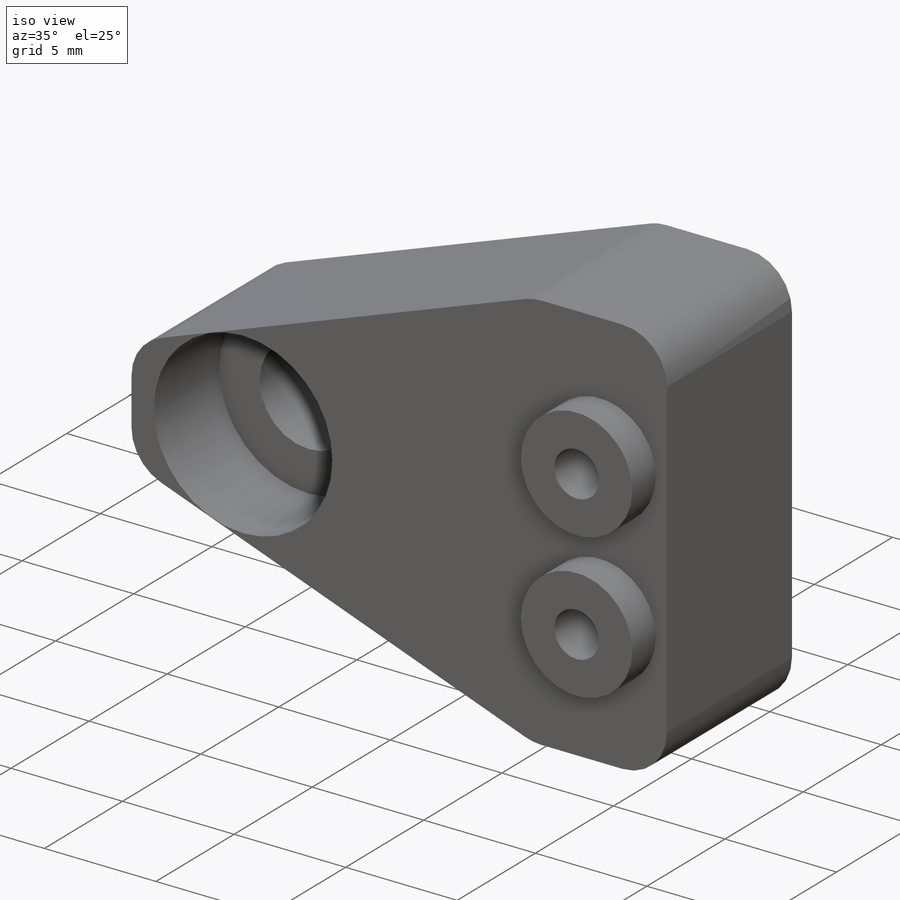
[diagram: iso view]
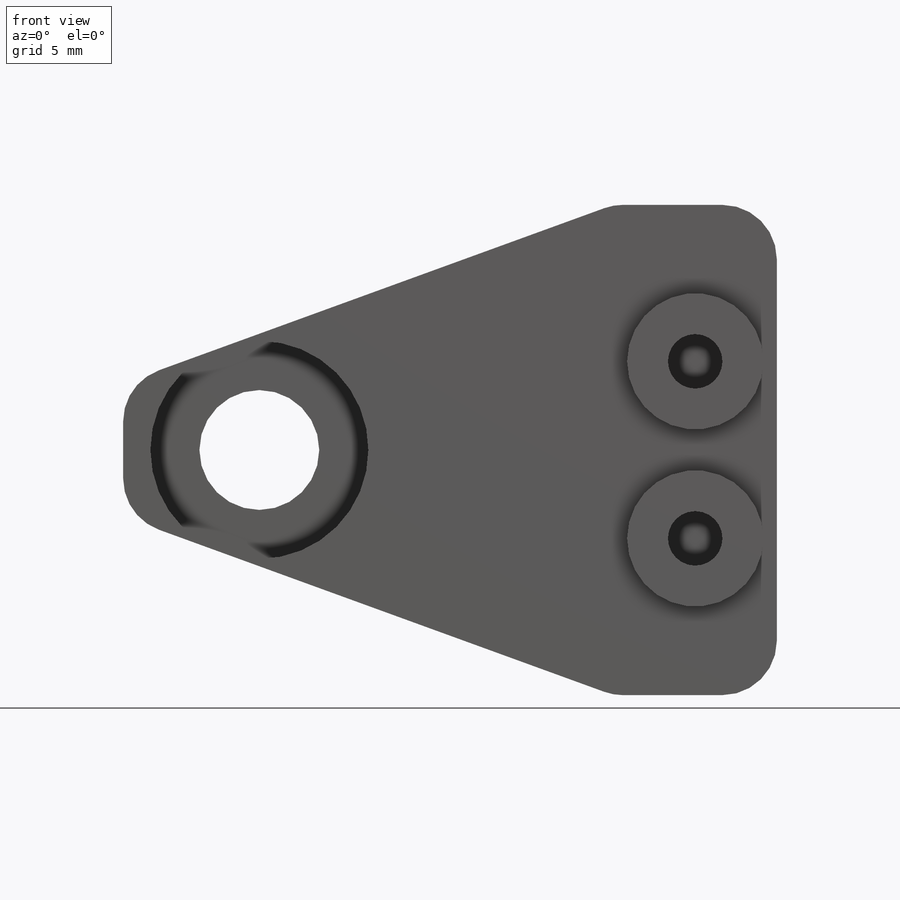
[diagram: front view]
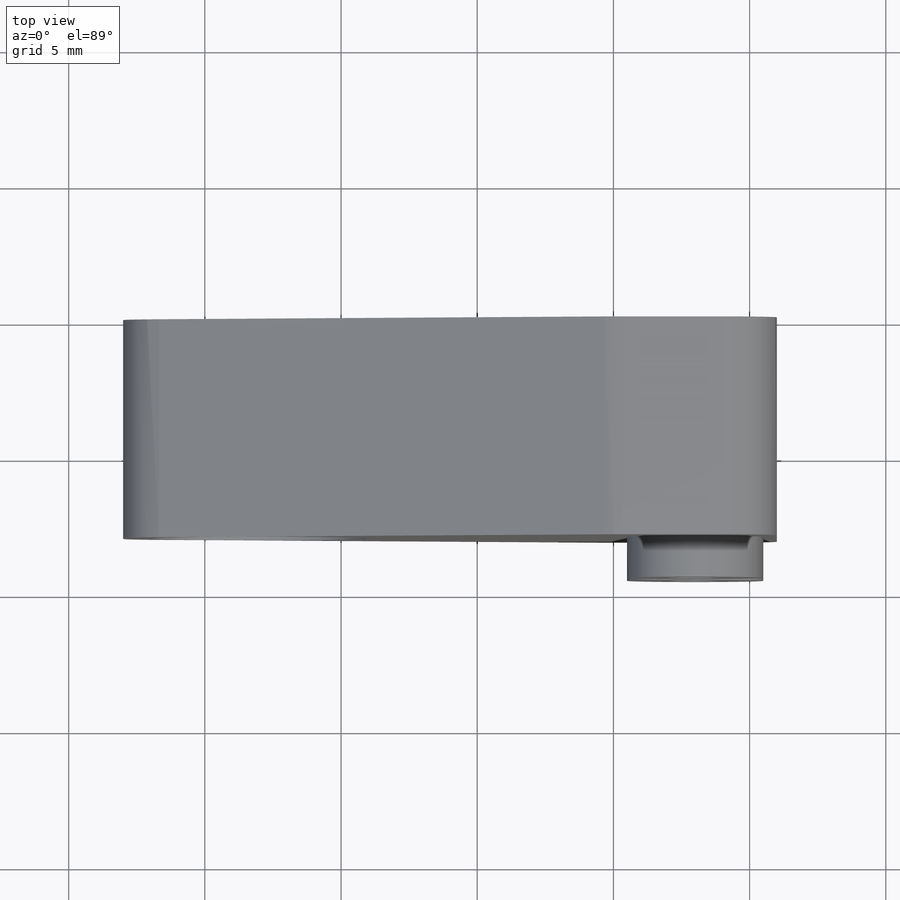
[diagram: top view]
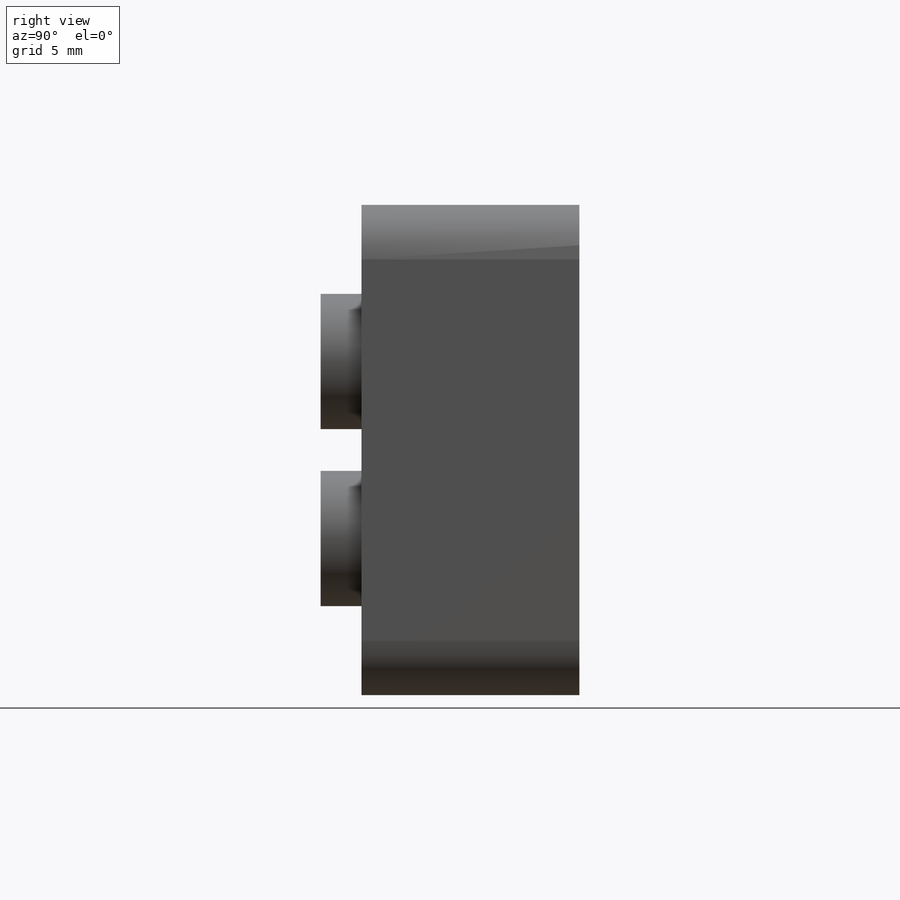
[diagram: right view]
SOLIDWORKS PART (.sldprt)
format: sldprt  version: not decoded by parser v0  size: 237,056 bytes
history: native  units: mm
features: sketch x7, cut_extrude x4, plane x3, extrude x3, material x1, chamfer x1, fillet x1 (+8 scaffold rows collapsed)
feature tree (28):
  scaffold x8  (default folders/planes/origin — collapsed)
  material  "Matériau <non spécifié>"
  plane  "Plan de face"
  plane  "Plan de dessus"
  plane  "Plan de droite"
  sketch  "Esquisse1"  dims[D1=18.0mm D2=24.0mm D3=9.0mm D4=8.0mm]
  extrude  "Boss.-Extru.1"  Depth=8mm
  sketch  "Esquisse2"  dims[D1=4.4mm D2=5.0mm D3=9.0mm]
  cut_extrude  "Enlèv. mat.-Extru.1"  [1 undecoded]
  sketch  "Esquisse3"  dims[D1=8.0mm]
  cut_extrude  "Enlèv. mat.-Extru.2"  Depth=4.2mm
  sketch  "Esquisse4"  dims[D2=2.0mm D3=2.0mm D1=6.5mm D4=3.0mm D5=3.0mm D6=3.25mm]
  cut_extrude  "Enlèv. mat.-Extru.3"  [1 undecoded]
  sketch  "Esquisse5"  dims[D1=5.2mm D2=5.2mm]
  cut_extrude  "Enlèv. mat.-Extru.6"  Depth=4.2mm
  sketch  "Esquisse6"
  extrude  "Boss.-Extru.2"  Depth=1mm
  chamfer  "Chanfrein1"  Distance=18mm Angle=20deg
  fillet  "Congé1"  Radius=2mm
  sketch  "Esquisse7"  dims[D1=5.0mm D2=5.0mm]
  extrude  "Boss.-Extru.3"  Depth=1.5mm
decode coverage: 13 of 16 modeling features carry decoded parameters
note: 2 parameter values undecoded
note: suppression state not decoded; provenance and decode notes live in map.json
